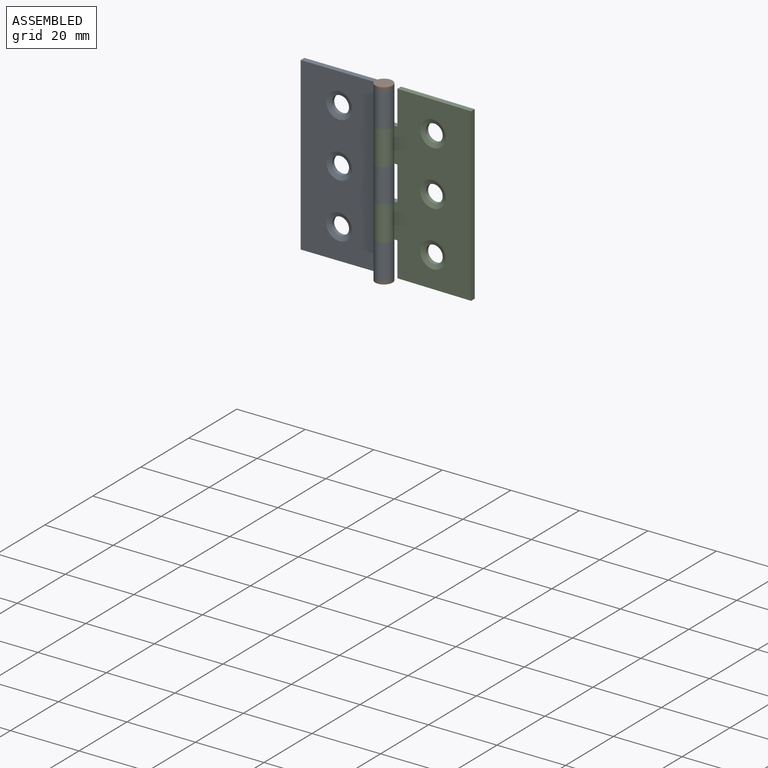
[diagram: assembled view]
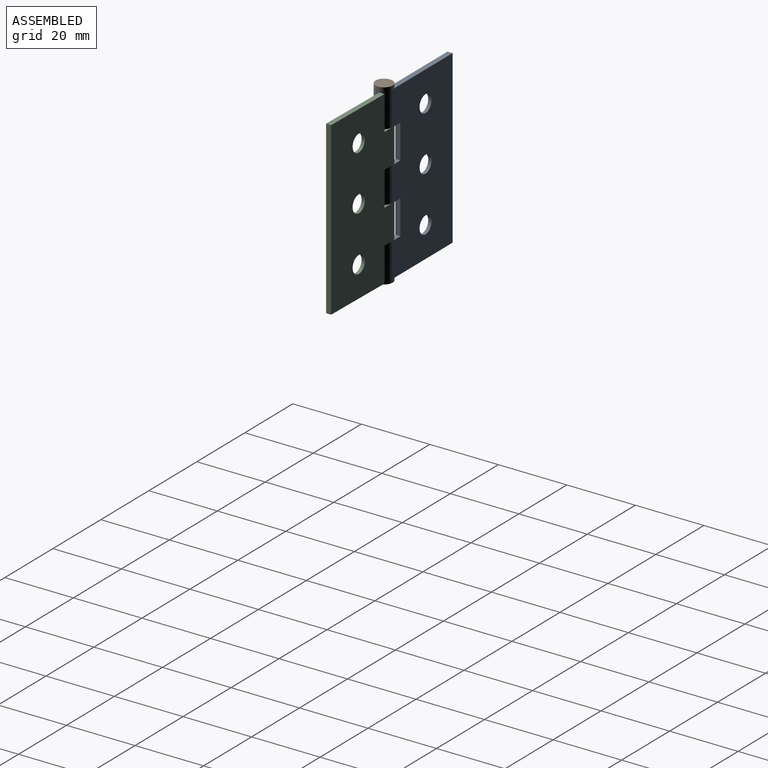
[diagram: assembled view, second angle]
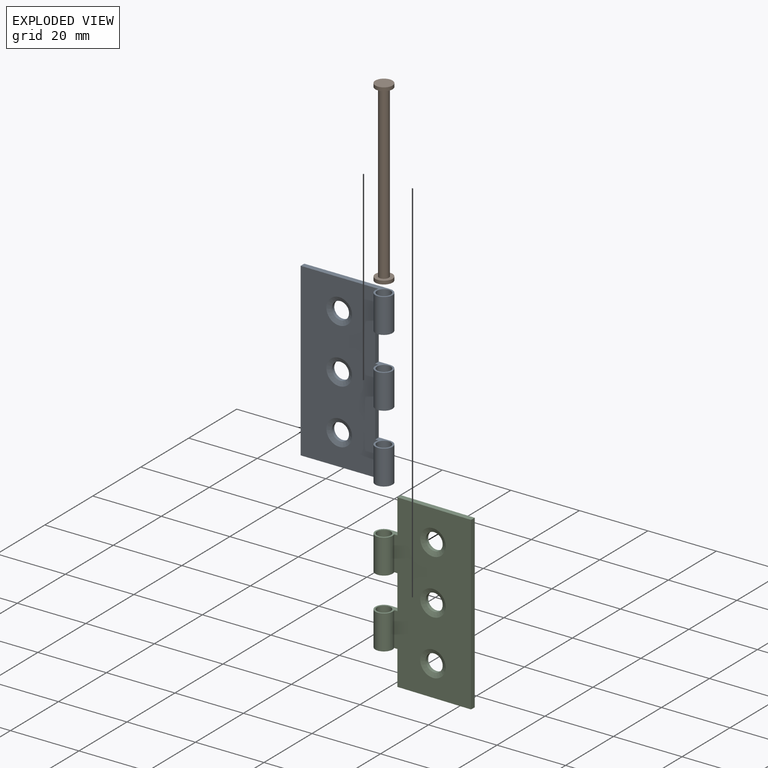
[diagram: exploded view]
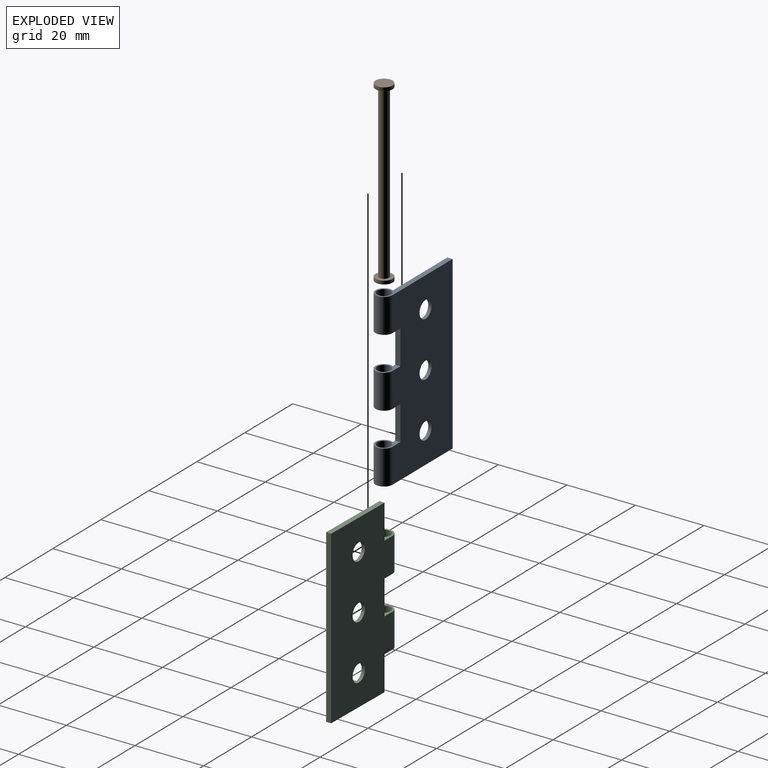
[diagram: exploded view, second angle]
ASSEMBLY  parts=3 mates=2
PART A: 23 faces, bbox 27.5x5x50 mm
  f0: plane 50x22.71mm, normal (0,-1,0), area 983.7mm2, adj f2,f3,f4,f6,f8,f10,f11,f12
  f1: plane 50x25mm, normal (0,1,0), area 1126.1mm2, adj f2,f3,f4,f5,f7,f9,f11,f12
  f2: plane 50x1.5mm, normal (-1,0,0), area 75mm2, adj f0,f1,f3,f4
  f3: plane 27.5x5mm, normal (0,0,1), area 42.1mm2, adj f0,f1,f2,f19,f21
  f4: plane 27.5x5mm, normal (0,0,-1), area 42.1mm2, adj f0,f1,f2,f17,f22
  f5: cylinder r=2.5mm len=5mm, axis (0,-1,0), area 15.4mm2, adj f1,f6
  f6: cone r=2.5mm half-angle=67.5deg, axis (0,-1,0), area 26.6mm2, adj f0,f5
  f7: cylinder r=2.5mm len=5mm, axis (0,-1,0), area 15.4mm2, adj f1,f8
  f8: cone r=2.5mm half-angle=67.5deg, axis (0,-1,0), area 26.6mm2, adj f0,f7
  f9: cylinder r=2.5mm len=5mm, axis (0,-1,0), area 15.4mm2, adj f1,f10
  f10: cone r=2.5mm half-angle=67.5deg, axis (0,-1,0), area 26.6mm2, adj f0,f9
  f11: plane 5.75x5mm, normal (0,0,-1), area 9.5mm2, adj f0,f1,f13,f18,f20
  f12: plane 5.75x5mm, normal (0,0,1), area 9.5mm2, adj f0,f1,f13,f17,f22
  f13: plane 10x1.5mm, normal (1,0,0), area 15mm2, adj f0,f1,f11,f12
  f14: plane 5.75x5mm, normal (0,0,-1), area 9.5mm2, adj f0,f1,f16,f19,f21
  f15: plane 5.75x5mm, normal (0,0,1), area 9.5mm2, adj f0,f1,f16,f18,f20
  f16: plane 10x1.5mm, normal (1,0,0), area 15mm2, adj f0,f1,f14,f15
  f17: cylinder r=2.5mm len=10mm, axis (0,0,-1), area 128.1mm2, adj f0,f1,f4,f12
  f18: cylinder r=2.5mm len=10mm, axis (0,0,-1), area 128.1mm2, adj f0,f1,f11,f15
  f19: cylinder r=2.5mm len=10mm, axis (0,0,-1), area 128.1mm2, adj f0,f1,f3,f14
  f20: cylinder r=2mm len=10mm, axis (0,0,-1), area 125.7mm2, adj f11,f15
  f21: cylinder r=2mm len=10mm, axis (0,0,-1), area 125.7mm2, adj f3,f14
  f22: cylinder r=2mm len=10mm, axis (0,0,-1), area 125.7mm2, adj f4,f12
PART B: 7 faces, bbox 5x5x52 mm
  f0: cylinder r=1.43mm len=50mm, axis (0,0,-1), area 447.7mm2, adj f3,f5
  f1: cylinder r=2.5mm len=5mm, axis (0,0,1), area 15.7mm2, adj f2,f3
  f2: plane 5x5mm, normal (0,0,-1), area 19.6mm2, adj f1
  f3: plane 5x5mm, normal (0,0,1), area 13.3mm2, adj f0,f1
  f4: cylinder r=2.5mm len=5mm, axis (0,0,1), area 15.7mm2, adj f5,f6
  f5: plane 5x5mm, normal (0,0,-1), area 13.3mm2, adj f0,f4
  f6: plane 5x5mm, normal (0,0,1), area 19.6mm2, adj f4
PART C: 22 faces, bbox 27.5x5x50 mm
  f0: plane 50x22.71mm, normal (0,-1,0), area 974.1mm2, adj f2,f3,f4,f6,f8,f10,f11,f12
  f1: plane 50x25mm, normal (0,1,0), area 1093.6mm2, adj f2,f3,f4,f5,f7,f9,f11,f12
  f2: plane 50x1.5mm, normal (1,0,0), area 75mm2, adj f0,f1,f3,f4
  f3: plane 21.75x1.5mm, normal (0,0,1), area 32.6mm2, adj f0,f1,f2,f16
  f4: plane 21.75x1.5mm, normal (0,0,-1), area 32.6mm2, adj f0,f1,f2,f12
  f5: cylinder r=2.5mm len=5mm, axis (0,-1,0), area 15.4mm2, adj f1,f6
  f6: cone r=2.5mm half-angle=67.5deg, axis (0,-1,0), area 26.6mm2, adj f0,f5
  f7: cylinder r=2.5mm len=5mm, axis (0,-1,0), area 15.4mm2, adj f1,f8
  f8: cone r=2.5mm half-angle=67.5deg, axis (0,-1,0), area 26.6mm2, adj f0,f7
  f9: cylinder r=2.5mm len=5mm, axis (0,-1,0), area 15.4mm2, adj f1,f10
  f10: cone r=2.5mm half-angle=67.5deg, axis (0,-1,0), area 26.6mm2, adj f0,f9
  f11: plane 5.75x5mm, normal (0,0,-1), area 9.5mm2, adj f0,f1,f12,f19,f21
  f12: plane 10x1.5mm, normal (-1,0,0), area 15mm2, adj f0,f1,f4,f11
  f13: plane 5.75x5mm, normal (0,0,-1), area 9.5mm2, adj f0,f1,f14,f18,f20
  f14: plane 10x1.5mm, normal (-1,0,0), area 15mm2, adj f0,f1,f13,f15
  f15: plane 5.75x5mm, normal (0,0,1), area 9.5mm2, adj f0,f1,f14,f19,f21
  f16: plane 10x1.5mm, normal (-1,0,0), area 15mm2, adj f0,f1,f3,f17
  f17: plane 5.75x5mm, normal (0,0,1), area 9.5mm2, adj f0,f1,f16,f18,f20
  f18: cylinder r=2.5mm len=10mm, axis (0,0,-1), area 128.1mm2, adj f0,f1,f13,f17
  f19: cylinder r=2.5mm len=10mm, axis (0,0,-1), area 128.1mm2, adj f0,f1,f11,f15
  f20: cylinder r=2mm len=10mm, axis (0,0,-1), area 125.7mm2, adj f13,f17
  f21: cylinder r=2mm len=10mm, axis (0,0,-1), area 125.7mm2, adj f11,f15
PLACE A t=(-0.32,10.46,-3.9)mm
PLACE B t=(-0.32,10.46,-3.9)mm
PLACE C rot(axis=(0,0,-1),0.9deg) t=(-0.32,10.46,-3.9)mm
MATE revolute C.f18 <-> B.f0  axis (0,0,-1) through (-0.32,10.46,11.1)mm
MATE revolute B.f0 <-> A.f17  axis (0,0,-1) through (-0.32,10.46,21.1)mm
